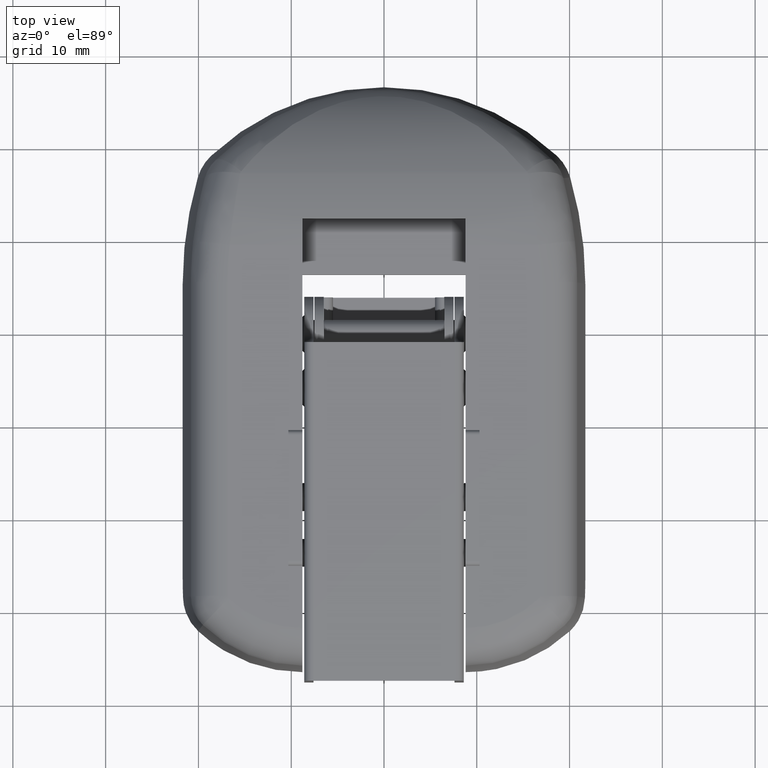
[diagram: clean part render]
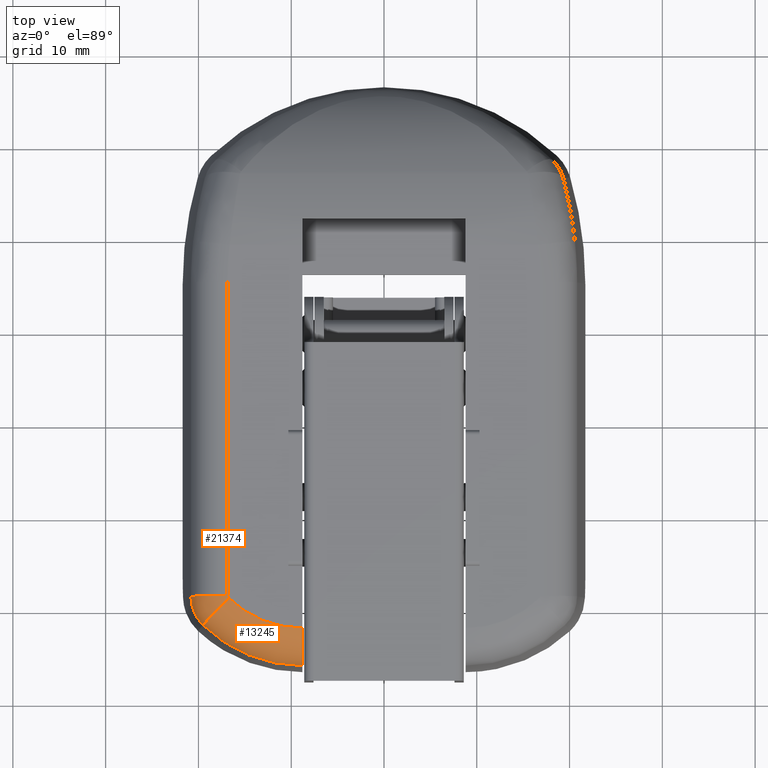
[diagram: same view with one multi-face feature highlighted, each face labeled with its STEP entity id]
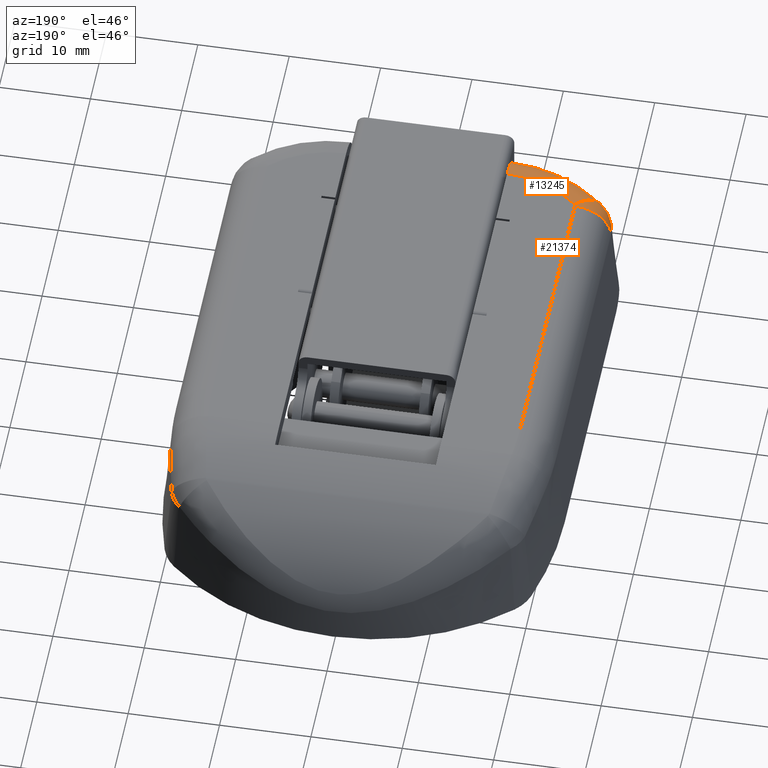
[diagram: same view with one multi-face feature highlighted, each face labeled with its STEP entity id]
A machine part, top view. The highlighted faces form ONE feature: a constant-radius fillet chain: 2 tangent blend faces with common blend radius 4 mm. The faces share edges in the B-rep.
A second angle (auxiliary view) of the same feature is appended — it is thin or edge-on in the first view.
Their STEP definitions:
[1] entity #13245 (Torus):
#18 = EDGE_CURVE ( 'NONE', #3202, #19231, #16047, .T. ) ;
#666 = CARTESIAN_POINT ( 'NONE',  ( -16.73427271275121300, 6.905422755620948600, 0.0000000000000000000 ) ) ;
#948 = DIRECTION ( 'NONE',  ( -0.7141428428542853100, 0.6999999999999997300, 0.0000000000000000000 ) ) ;
#1769 = ORIENTED_EDGE ( 'NONE', *, *, #17589, .F. ) ;
#2393 = FACE_OUTER_BOUND ( 'NONE', #7638, .T. ) ;
#3037 = CIRCLE ( 'NONE', #15634, 11.33467530393030900 ) ;
#3202 = VERTEX_POINT ( 'NONE', #4750 ) ;
#3801 = CARTESIAN_POINT ( 'NONE',  ( -8.799999999999997200, -0.3194540962972892100, -3.651377029009366600 ) ) ;
#4750 = CARTESIAN_POINT ( 'NONE',  ( -8.800000000000002500, 3.665324696069692600, 0.0000000000000000000 ) ) ;
#4926 = CARTESIAN_POINT ( 'NONE',  ( -19.52361786740809900, 4.059721500694526400, -3.651377029009366100 ) ) ;
#5057 = CARTESIAN_POINT ( 'NONE',  ( -8.800000000000000700, 15.00000000000000000, -4.000000000000000000 ) ) ;
#7638 = EDGE_LOOP ( 'NONE', ( #24293, #8155, #1769, #23200 ) ) ;
#7763 = DIRECTION ( 'NONE',  ( 0.0000000000000000000, 0.0000000000000000000, 1.000000000000000000 ) ) ;
#8155 = ORIENTED_EDGE ( 'NONE', *, *, #22884, .F. ) ;
#8828 = EDGE_CURVE ( 'NONE', #19231, #14068, #17825, .T. ) ;
#9877 = AXIS2_PLACEMENT_3D ( 'NONE', #5057, #23474, #11250 ) ;
#10496 = AXIS2_PLACEMENT_3D ( 'NONE', #10594, #25000, #12675 ) ;
#10594 = CARTESIAN_POINT ( 'NONE',  ( -8.800000000000000700, 15.00000000000000000, -3.651377029009367000 ) ) ;
#11250 = DIRECTION ( 'NONE',  ( -1.000000000000000000, 0.0000000000000000000, 0.0000000000000000000 ) ) ;
#12675 = DIRECTION ( 'NONE',  ( -1.000000000000000000, 0.0000000000000000000, 0.0000000000000000000 ) ) ;
#12685 = TOROIDAL_SURFACE ( 'NONE', #9877, 11.33467530393030700, 4.000000000000000000 ) ;
#12889 = DIRECTION ( 'NONE',  ( 0.0000000000000000000, 0.0000000000000000000, 1.000000000000000000 ) ) ;
#13245 = ADVANCED_FACE ( 'NONE', ( #2393 ), #12685, .T. ) ;
#13249 = CARTESIAN_POINT ( 'NONE',  ( -16.73427271275121300, 6.905422755620948600, -4.000000000000000000 ) ) ;
#13817 = AXIS2_PLACEMENT_3D ( 'NONE', #25899, #21082, #12889 ) ;
#14068 = VERTEX_POINT ( 'NONE', #4926 ) ;
#15343 = DIRECTION ( 'NONE',  ( -0.6999999999999999600, -0.7141428428542852000, 0.0000000000000000000 ) ) ;
#15634 = AXIS2_PLACEMENT_3D ( 'NONE', #20146, #7763, #22208 ) ;
#16047 = CIRCLE ( 'NONE', #13817, 4.000000000000000000 ) ;
#17108 = CIRCLE ( 'NONE', #22191, 4.000000000000000900 ) ;
#17492 = VERTEX_POINT ( 'NONE', #666 ) ;
#17589 = EDGE_CURVE ( 'NONE', #14068, #17492, #17108, .T. ) ;
#17825 = CIRCLE ( 'NONE', #10496, 15.31945409629728700 ) ;
#19231 = VERTEX_POINT ( 'NONE', #3801 ) ;
#20146 = CARTESIAN_POINT ( 'NONE',  ( -8.800000000000000700, 15.00000000000000000, 0.0000000000000000000 ) ) ;
#21082 = DIRECTION ( 'NONE',  ( 1.000000000000000000, 0.0000000000000000000, 0.0000000000000000000 ) ) ;
#22191 = AXIS2_PLACEMENT_3D ( 'NONE', #13249, #948, #15343 ) ;
#22208 = DIRECTION ( 'NONE',  ( -1.000000000000000000, 9.182742845974370300E-016, 0.0000000000000000000 ) ) ;
#22884 = EDGE_CURVE ( 'NONE', #17492, #3202, #3037, .T. ) ;
#23200 = ORIENTED_EDGE ( 'NONE', *, *, #8828, .F. ) ;
#23474 = DIRECTION ( 'NONE',  ( -0.0000000000000000000, -0.0000000000000000000, -1.000000000000000000 ) ) ;
#24293 = ORIENTED_EDGE ( 'NONE', *, *, #18, .F. ) ;
#25000 = DIRECTION ( 'NONE',  ( -0.0000000000000000000, -0.0000000000000000000, -1.000000000000000000 ) ) ;
#25899 = CARTESIAN_POINT ( 'NONE',  ( -8.800000000000000700, 3.665324696069692600, -4.000000000000000000 ) ) ;
[2] entity #21374 (Torus):
#666 = CARTESIAN_POINT ( 'NONE',  ( -16.73427271275121300, 6.905422755620948600, 0.0000000000000000000 ) ) ;
#856 = FACE_OUTER_BOUND ( 'NONE', #11301, .T. ) ;
#948 = DIRECTION ( 'NONE',  ( -0.7141428428542853100, 0.6999999999999997300, 0.0000000000000000000 ) ) ;
#1445 = DIRECTION ( 'NONE',  ( 0.0000000000000000000, 0.0000000000000000000, 1.000000000000000000 ) ) ;
#1472 = CARTESIAN_POINT ( 'NONE',  ( -16.50000000000000000, 7.144428728602862000, -4.000000000000000000 ) ) ;
#1696 = DIRECTION ( 'NONE',  ( 0.0000000000000000000, 0.0000000000000000000, 1.000000000000000000 ) ) ;
#2232 = ORIENTED_EDGE ( 'NONE', *, *, #22438, .F. ) ;
#3956 = VERTEX_POINT ( 'NONE', #13003 ) ;
#4926 = CARTESIAN_POINT ( 'NONE',  ( -19.52361786740809900, 4.059721500694526400, -3.651377029009366100 ) ) ;
#5565 = DIRECTION ( 'NONE',  ( -1.000000000000000000, 0.0000000000000000000, 0.0000000000000000000 ) ) ;
#5652 = TOROIDAL_SURFACE ( 'NONE', #7964, 0.3346753039303060900, 4.000000000000000000 ) ;
#5726 = VERTEX_POINT ( 'NONE', #25455 ) ;
#6402 = DIRECTION ( 'NONE',  ( -0.0000000000000000000, -0.0000000000000000000, -1.000000000000000000 ) ) ;
#6948 = AXIS2_PLACEMENT_3D ( 'NONE', #14014, #1696, #16105 ) ;
#7964 = AXIS2_PLACEMENT_3D ( 'NONE', #1472, #15861, #5565 ) ;
#10573 = AXIS2_PLACEMENT_3D ( 'NONE', #18770, #6402, #20841 ) ;
#10753 = CIRCLE ( 'NONE', #10573, 4.319454096297289600 ) ;
#11301 = EDGE_LOOP ( 'NONE', ( #13410, #25579, #20114, #2232 ) ) ;
#13003 = CARTESIAN_POINT ( 'NONE',  ( -20.81945409629729200, 7.144428728602862000, -3.651377029009366600 ) ) ;
#13249 = CARTESIAN_POINT ( 'NONE',  ( -16.73427271275121300, 6.905422755620948600, -4.000000000000000000 ) ) ;
#13410 = ORIENTED_EDGE ( 'NONE', *, *, #17589, .T. ) ;
#13753 = DIRECTION ( 'NONE',  ( 0.0000000000000000000, 1.000000000000000000, -0.0000000000000000000 ) ) ;
#14014 = CARTESIAN_POINT ( 'NONE',  ( -16.50000000000000000, 7.144428728602862000, 0.0000000000000000000 ) ) ;
#14068 = VERTEX_POINT ( 'NONE', #4926 ) ;
#15343 = DIRECTION ( 'NONE',  ( -0.6999999999999999600, -0.7141428428542852000, 0.0000000000000000000 ) ) ;
#15861 = DIRECTION ( 'NONE',  ( -0.0000000000000000000, -0.0000000000000000000, -1.000000000000000000 ) ) ;
#16105 = DIRECTION ( 'NONE',  ( -1.000000000000000000, 0.0000000000000000000, 0.0000000000000000000 ) ) ;
#17108 = CIRCLE ( 'NONE', #22191, 4.000000000000000900 ) ;
#17492 = VERTEX_POINT ( 'NONE', #666 ) ;
#17589 = EDGE_CURVE ( 'NONE', #14068, #17492, #17108, .T. ) ;
#18770 = CARTESIAN_POINT ( 'NONE',  ( -16.50000000000000000, 7.144428728602862000, -3.651377029009366600 ) ) ;
#19662 = EDGE_CURVE ( 'NONE', #3956, #5726, #25751, .T. ) ;
#20114 = ORIENTED_EDGE ( 'NONE', *, *, #19662, .F. ) ;
#20140 = CIRCLE ( 'NONE', #6948, 0.3346753039303075300 ) ;
#20841 = DIRECTION ( 'NONE',  ( -1.000000000000000000, 0.0000000000000000000, 0.0000000000000000000 ) ) ;
#21374 = ADVANCED_FACE ( 'NONE', ( #856 ), #5652, .T. ) ;
#22191 = AXIS2_PLACEMENT_3D ( 'NONE', #13249, #948, #15343 ) ;
#22215 = EDGE_CURVE ( 'NONE', #5726, #17492, #20140, .T. ) ;
#22438 = EDGE_CURVE ( 'NONE', #14068, #3956, #10753, .T. ) ;
#24347 = AXIS2_PLACEMENT_3D ( 'NONE', #26070, #13753, #1445 ) ;
#25455 = CARTESIAN_POINT ( 'NONE',  ( -16.83467530393030700, 7.144428728602862000, 0.0000000000000000000 ) ) ;
#25579 = ORIENTED_EDGE ( 'NONE', *, *, #22215, .F. ) ;
#25751 = CIRCLE ( 'NONE', #24347, 4.000000000000000000 ) ;
#26070 = CARTESIAN_POINT ( 'NONE',  ( -16.83467530393030700, 7.144428728602862000, -4.000000000000000000 ) ) ;